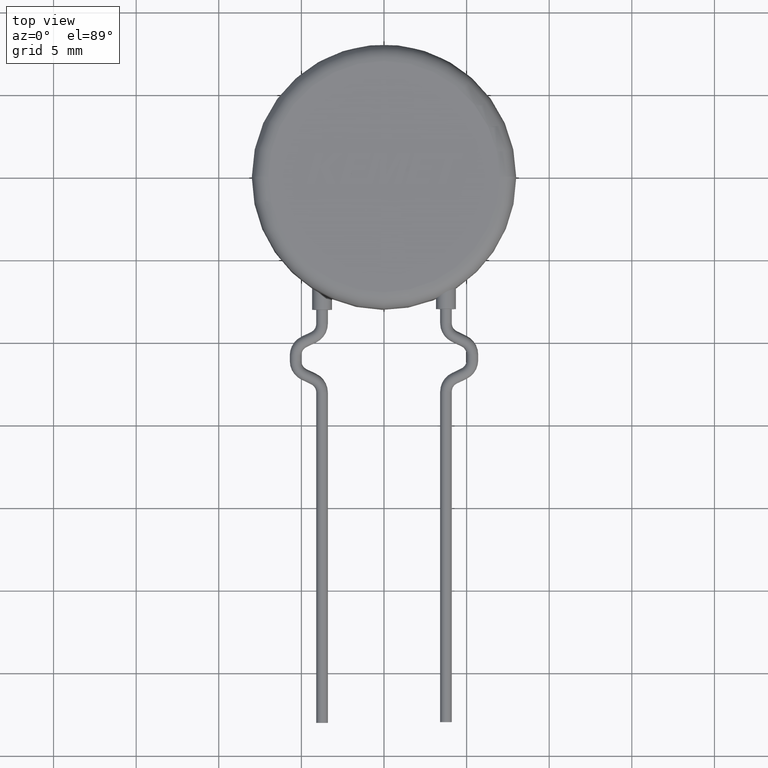
[diagram: clean part render]
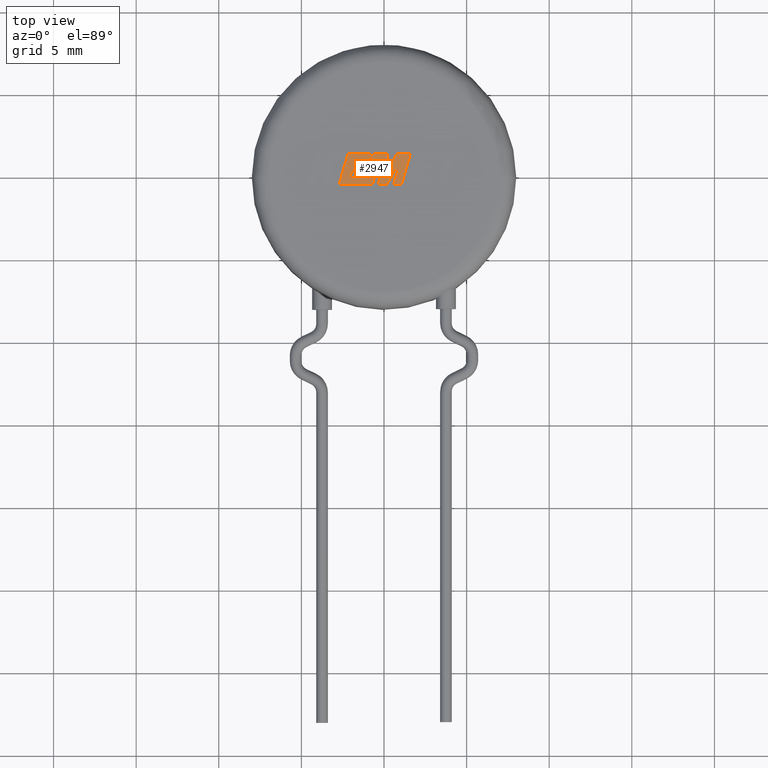
[diagram: same view with one face highlighted and labeled with its STEP entity id]
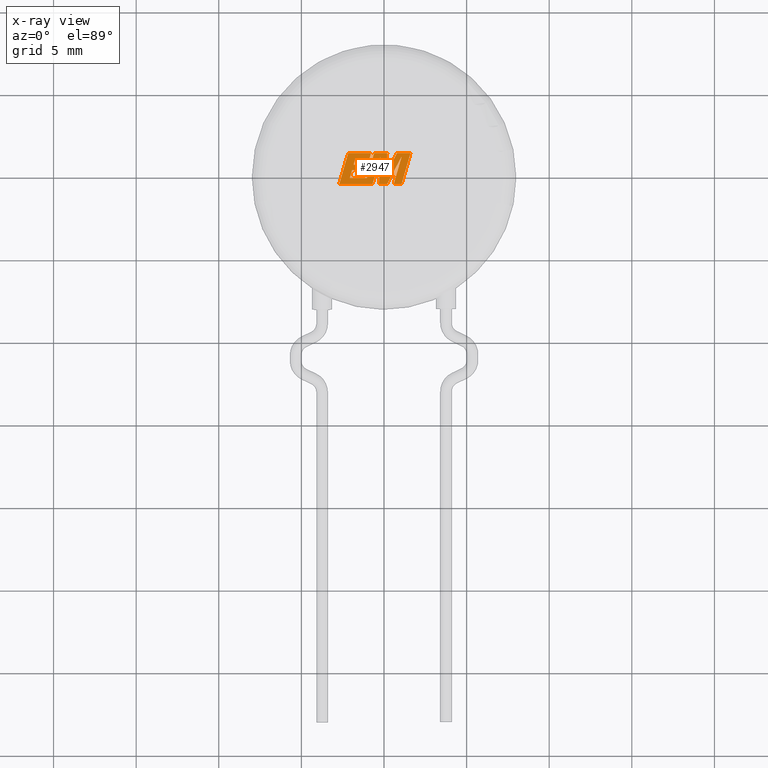
[diagram: x-ray of the same camera — body ghosted, the highlighted face saturated]
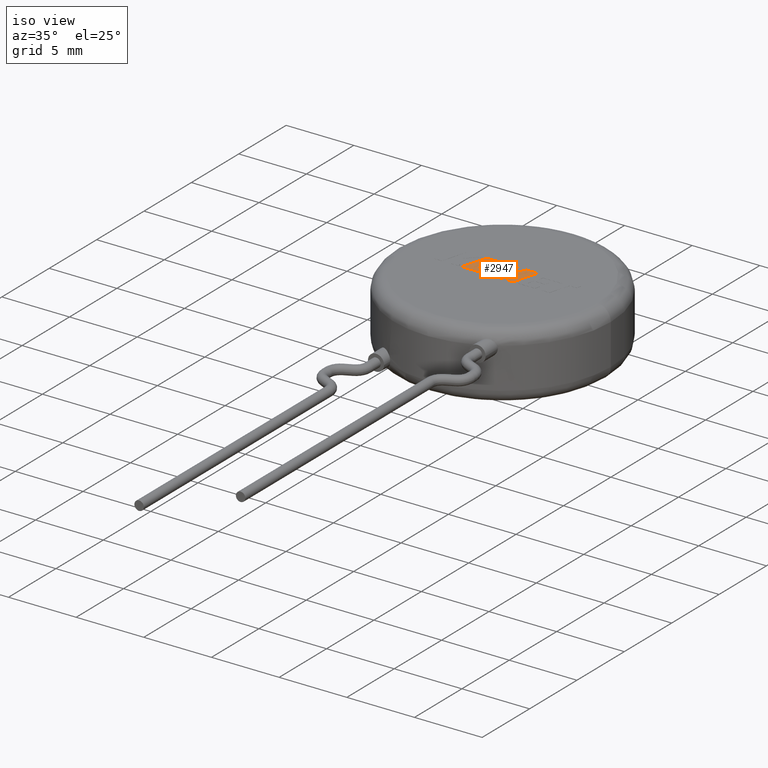
[diagram: same view with one face highlighted and labeled with its STEP entity id]
A machine part, top view. The second image highlights one B-rep face of the part: STEP entity #2947.
The next image is the same camera in x-ray: the body ghosted, the highlighted face saturated — about 0% of this face is hidden behind the body in this view.
A second angle (iso view) of the same face is appended — the face is thin or edge-on in the first view.
In plain terms, the highlighted planar face has unit normal (0, 0, -1).
Its self-contained STEP definition (entity closure, byte-faithful):
#5 = DIRECTION ( 'NONE',  ( -1.000000000000000000, 0.000000000000000000, 0.000000000000000000 ) ) ;
#26 = LINE ( 'NONE', #2363, #4378 ) ;
#69 = CARTESIAN_POINT ( 'NONE',  ( -1.037326975298746179, 0.7173078363260645407, 5.004999999999999893 ) ) ;
#92 = LINE ( 'NONE', #1436, #3196 ) ;
#121 = VECTOR ( 'NONE', #3236, 1000.000000000000227 ) ;
#146 = VERTEX_POINT ( 'NONE', #4044 ) ;
#165 = CARTESIAN_POINT ( 'NONE',  ( 1.067913865636589410, -0.4463250368678163826, 5.004999999999999893 ) ) ;
#168 = VECTOR ( 'NONE', #2300, 1000.000000000000000 ) ;
#177 = VERTEX_POINT ( 'NONE', #3597 ) ;
#199 = CARTESIAN_POINT ( 'NONE',  ( 1.604909352789751331, 1.419501945864818593, 5.004999999999999893 ) ) ;
#211 = LINE ( 'NONE', #4101, #4227 ) ;
#236 = VERTEX_POINT ( 'NONE', #3556 ) ;
#300 = CARTESIAN_POINT ( 'NONE',  ( -2.165797810300094106, 1.419501945864817705, 5.004999999999999893 ) ) ;
#367 = CARTESIAN_POINT ( 'NONE',  ( -1.737904022710164309, 1.064351360104700772, 5.004999999999999893 ) ) ;
#369 = VERTEX_POINT ( 'NONE', #2069 ) ;
#414 = PLANE ( 'NONE',  #1476 ) ;
#439 = DIRECTION ( 'NONE',  ( 1.000000000000000000, 0.000000000000000000, 0.000000000000000000 ) ) ;
#440 = VECTOR ( 'NONE', #896, 1000.000000000000114 ) ;
#467 = VECTOR ( 'NONE', #3476, 1000.000000000000114 ) ;
#488 = CARTESIAN_POINT ( 'NONE',  ( -1.838992474754948647, 0.7173078363260645407, 5.004999999999999893 ) ) ;
#508 = CARTESIAN_POINT ( 'NONE',  ( -0.2136662203277694405, 1.214771682959007393, 5.004999999999999893 ) ) ;
#509 = VECTOR ( 'NONE', #1508, 1000.000000000000114 ) ;
#510 = CARTESIAN_POINT ( 'NONE',  ( -0.3068720447621398617, -0.4463250368678168267, 5.004999999999999893 ) ) ;
#543 = VECTOR ( 'NONE', #1069, 999.9999999999998863 ) ;
#555 = CARTESIAN_POINT ( 'NONE',  ( -1.937502603360100384, 0.3723804315944925780, 5.004999999999999893 ) ) ;
#557 = ORIENTED_EDGE ( 'NONE', *, *, #2718, .T. ) ;
#564 = LINE ( 'NONE', #1539, #828 ) ;
#582 = ORIENTED_EDGE ( 'NONE', *, *, #1840, .T. ) ;
#628 = LINE ( 'NONE', #1368, #2096 ) ;
#636 = LINE ( 'NONE', #4312, #2613 ) ;
#655 = CARTESIAN_POINT ( 'NONE',  ( 0.1910567310655477136, -0.4463250368678166047, 5.004999999999999893 ) ) ;
#684 = DIRECTION ( 'NONE',  ( 0.2762426851186988719, 0.9610879142505182049, 0.000000000000000000 ) ) ;
#708 = CARTESIAN_POINT ( 'NONE',  ( -0.7859574772992985459, 1.419501945864818149, 5.004999999999999893 ) ) ;
#713 = ORIENTED_EDGE ( 'NONE', *, *, #1155, .T. ) ;
#784 = DIRECTION ( 'NONE',  ( 0.000000000000000000, 0.000000000000000000, -1.000000000000000000 ) ) ;
#808 = CARTESIAN_POINT ( 'NONE',  ( -1.037326975298746179, 0.7173078363260645407, 5.004999999999999893 ) ) ;
#828 = VECTOR ( 'NONE', #3270, 1000.000000000000000 ) ;
#830 = ORIENTED_EDGE ( 'NONE', *, *, #3845, .T. ) ;
#896 = DIRECTION ( 'NONE',  ( -0.05602289266521665034, -0.9984294844892259713, 0.000000000000000000 ) ) ;
#916 = ORIENTED_EDGE ( 'NONE', *, *, #1343, .T. ) ;
#917 = ORIENTED_EDGE ( 'NONE', *, *, #3175, .T. ) ;
#924 = DIRECTION ( 'NONE',  ( 0.2796619658066604730, 0.9600985287360637166, 0.000000000000000000 ) ) ;
#973 = CARTESIAN_POINT ( 'NONE',  ( 0.1239257491546233159, 0.08653117646504851490, 5.004999999999999893 ) ) ;
#979 = LINE ( 'NONE', #3011, #1696 ) ;
#1062 = CARTESIAN_POINT ( 'NONE',  ( 1.067913865636589410, -0.4463250368678163826, 5.004999999999999893 ) ) ;
#1069 = DIRECTION ( 'NONE',  ( 0.2742846567084410436, 0.9616485465565539625, 0.000000000000000000 ) ) ;
#1088 = LINE ( 'NONE', #4389, #2047 ) ;
#1151 = CARTESIAN_POINT ( 'NONE',  ( -1.838992474754948647, 0.7173078363260645407, 5.004999999999999893 ) ) ;
#1154 = LINE ( 'NONE', #2757, #467 ) ;
#1155 = EDGE_CURVE ( 'NONE', #236, #1275, #92, .T. ) ;
#1223 = ORIENTED_EDGE ( 'NONE', *, *, #3760, .T. ) ;
#1232 = CARTESIAN_POINT ( 'NONE',  ( -0.5996594109620584367, 1.419501945864818149, 5.004999999999999893 ) ) ;
#1246 = EDGE_CURVE ( 'NONE', #4225, #4373, #2188, .T. ) ;
#1259 = LINE ( 'NONE', #488, #3247 ) ;
#1275 = VERTEX_POINT ( 'NONE', #808 ) ;
#1282 = EDGE_CURVE ( 'NONE', #369, #2210, #3177, .T. ) ;
#1288 = CARTESIAN_POINT ( 'NONE',  ( 1.073093229021950590, 1.222770953348802037, 5.004999999999999893 ) ) ;
#1343 = EDGE_CURVE ( 'NONE', #1982, #2519, #3705, .T. ) ;
#1349 = LINE ( 'NONE', #3747, #2112 ) ;
#1368 = CARTESIAN_POINT ( 'NONE',  ( 1.073093229021950590, 1.222770953348802037, 5.004999999999999893 ) ) ;
#1374 = CARTESIAN_POINT ( 'NONE',  ( 1.604909352789751331, 1.419501945864818593, 5.004999999999999893 ) ) ;
#1391 = EDGE_CURVE ( 'NONE', #2519, #2271, #628, .T. ) ;
#1420 = VECTOR ( 'NONE', #2500, 1000.000000000000000 ) ;
#1432 = CARTESIAN_POINT ( 'NONE',  ( 0.1970842044045550689, 0.4141896342133338238, 5.004999999999998117 ) ) ;
#1436 = CARTESIAN_POINT ( 'NONE',  ( -1.135950686434203050, 0.3723804315944925780, 5.004999999999999893 ) ) ;
#1448 = CARTESIAN_POINT ( 'NONE',  ( -2.703264666454254339, -0.4463250368678172708, 5.004999999999999893 ) ) ;
#1476 = AXIS2_PLACEMENT_3D ( 'NONE', #1432, #784, #1741 ) ;
#1486 = FACE_OUTER_BOUND ( 'NONE', #3994, .T. ) ;
#1508 = DIRECTION ( 'NONE',  ( 0.2734771135135810605, 0.9618785101998483800, 0.000000000000000000 ) ) ;
#1514 = EDGE_CURVE ( 'NONE', #4373, #1982, #2938, .T. ) ;
#1528 = VERTEX_POINT ( 'NONE', #1448 ) ;
#1538 = VECTOR ( 'NONE', #3630, 1000.000000000000227 ) ;
#1539 = CARTESIAN_POINT ( 'NONE',  ( -0.7859574772992985459, 1.419501945864818149, 5.004999999999999893 ) ) ;
#1590 = VERTEX_POINT ( 'NONE', #199 ) ;
#1696 = VECTOR ( 'NONE', #3678, 1000.000000000000114 ) ;
#1735 = ORIENTED_EDGE ( 'NONE', *, *, #1246, .T. ) ;
#1741 = DIRECTION ( 'NONE',  ( -1.000000000000000000, 0.000000000000000000, 0.000000000000000000 ) ) ;
#1840 = EDGE_CURVE ( 'NONE', #2210, #2828, #564, .T. ) ;
#1860 = ORIENTED_EDGE ( 'NONE', *, *, #1282, .T. ) ;
#1893 = VERTEX_POINT ( 'NONE', #1930 ) ;
#1916 = ORIENTED_EDGE ( 'NONE', *, *, #4372, .T. ) ;
#1918 = CARTESIAN_POINT ( 'NONE',  ( -0.3068720447621398617, -0.4463250368678168267, 5.004999999999999893 ) ) ;
#1923 = EDGE_CURVE ( 'NONE', #3849, #369, #636, .T. ) ;
#1930 = CARTESIAN_POINT ( 'NONE',  ( -1.034385187767230763, -0.09135032158837645688, 5.004999999999999893 ) ) ;
#1982 = VERTEX_POINT ( 'NONE', #3015 ) ;
#1999 = CARTESIAN_POINT ( 'NONE',  ( -0.2136662203277694405, 1.214771682959007393, 5.004999999999999893 ) ) ;
#2007 = DIRECTION ( 'NONE',  ( 1.000000000000000000, 0.000000000000000000, 0.000000000000000000 ) ) ;
#2028 = DIRECTION ( 'NONE',  ( 1.000000000000000000, 0.000000000000000000, 0.000000000000000000 ) ) ;
#2044 = LINE ( 'NONE', #3095, #3796 ) ;
#2047 = VECTOR ( 'NONE', #3087, 1000.000000000000114 ) ;
#2060 = EDGE_CURVE ( 'NONE', #1275, #2842, #3827, .T. ) ;
#2067 = DIRECTION ( 'NONE',  ( -0.4446908369572518116, -0.8956841293258795966, 0.000000000000000000 ) ) ;
#2069 = CARTESIAN_POINT ( 'NONE',  ( -0.8869323468139057587, 1.064351360104700772, 5.004999999999999893 ) ) ;
#2096 = VECTOR ( 'NONE', #4048, 1000.000000000000227 ) ;
#2112 = VECTOR ( 'NONE', #2028, 1000.000000000000000 ) ;
#2152 = ORIENTED_EDGE ( 'NONE', *, *, #2308, .T. ) ;
#2188 = LINE ( 'NONE', #508, #440 ) ;
#2210 = VERTEX_POINT ( 'NONE', #708 ) ;
#2220 = ORIENTED_EDGE ( 'NONE', *, *, #2329, .T. ) ;
#2271 = VERTEX_POINT ( 'NONE', #3042 ) ;
#2290 = VERTEX_POINT ( 'NONE', #2686 ) ;
#2300 = DIRECTION ( 'NONE',  ( 1.000000000000000000, 4.198073881304329234E-16, 0.000000000000000000 ) ) ;
#2308 = EDGE_CURVE ( 'NONE', #2290, #3688, #26, .T. ) ;
#2321 = CARTESIAN_POINT ( 'NONE',  ( 0.1957545535707970741, 1.419501945864818149, 5.004999999999999893 ) ) ;
#2329 = EDGE_CURVE ( 'NONE', #1528, #146, #3428, .T. ) ;
#2348 = ORIENTED_EDGE ( 'NONE', *, *, #2060, .T. ) ;
#2356 = VECTOR ( 'NONE', #2479, 1000.000000000000000 ) ;
#2363 = CARTESIAN_POINT ( 'NONE',  ( 0.7857214287655426288, 1.419501945864818593, 5.004999999999999893 ) ) ;
#2368 = EDGE_CURVE ( 'NONE', #2905, #236, #1349, .T. ) ;
#2378 = VERTEX_POINT ( 'NONE', #1062 ) ;
#2392 = EDGE_CURVE ( 'NONE', #146, #4225, #2044, .T. ) ;
#2433 = ORIENTED_EDGE ( 'NONE', *, *, #3980, .T. ) ;
#2454 = LINE ( 'NONE', #3730, #543 ) ;
#2479 = DIRECTION ( 'NONE',  ( -1.000000000000000000, 2.627992318163165297E-16, 0.000000000000000000 ) ) ;
#2500 = DIRECTION ( 'NONE',  ( -1.000000000000000000, 0.000000000000000000, 0.000000000000000000 ) ) ;
#2519 = VERTEX_POINT ( 'NONE', #1288 ) ;
#2520 = VERTEX_POINT ( 'NONE', #1232 ) ;
#2559 = EDGE_CURVE ( 'NONE', #2520, #1893, #1088, .T. ) ;
#2613 = VECTOR ( 'NONE', #2007, 1000.000000000000000 ) ;
#2686 = CARTESIAN_POINT ( 'NONE',  ( 0.7857214287655426288, 1.419501945864818593, 5.004999999999999893 ) ) ;
#2718 = EDGE_CURVE ( 'NONE', #3688, #4309, #979, .T. ) ;
#2757 = CARTESIAN_POINT ( 'NONE',  ( -2.165797810300094106, 1.419501945864817705, 5.004999999999999893 ) ) ;
#2778 = ORIENTED_EDGE ( 'NONE', *, *, #1923, .T. ) ;
#2828 = VERTEX_POINT ( 'NONE', #300 ) ;
#2838 = ORIENTED_EDGE ( 'NONE', *, *, #2368, .T. ) ;
#2839 = ORIENTED_EDGE ( 'NONE', *, *, #1514, .T. ) ;
#2842 = VERTEX_POINT ( 'NONE', #1151 ) ;
#2872 = ORIENTED_EDGE ( 'NONE', *, *, #3361, .T. ) ;
#2905 = VERTEX_POINT ( 'NONE', #555 ) ;
#2938 = LINE ( 'NONE', #1918, #168 ) ;
#2947 = ADVANCED_FACE ( 'NONE', ( #1486 ), #414, .F. ) ;
#3011 = CARTESIAN_POINT ( 'NONE',  ( 0.1239257491546233159, 0.08653117646504851490, 5.004999999999999893 ) ) ;
#3015 = CARTESIAN_POINT ( 'NONE',  ( 0.1910567310655477136, -0.4463250368678166047, 5.004999999999999893 ) ) ;
#3042 = CARTESIAN_POINT ( 'NONE',  ( 0.5932865459174190281, -0.4463250368678163826, 5.004999999999999893 ) ) ;
#3047 = VECTOR ( 'NONE', #3062, 1000.000000000000000 ) ;
#3062 = DIRECTION ( 'NONE',  ( -1.000000000000000000, 0.000000000000000000, 0.000000000000000000 ) ) ;
#3068 = ORIENTED_EDGE ( 'NONE', *, *, #2392, .T. ) ;
#3087 = DIRECTION ( 'NONE',  ( -0.2765164248279863290, -0.9610091918396767019, 0.000000000000000000 ) ) ;
#3095 = CARTESIAN_POINT ( 'NONE',  ( -0.6911103868009905726, -0.4463250368678168267, 5.004999999999999893 ) ) ;
#3117 = VECTOR ( 'NONE', #439, 1000.000000000000000 ) ;
#3152 = CARTESIAN_POINT ( 'NONE',  ( 0.1957545535707970741, 1.419501945864818149, 5.004999999999999893 ) ) ;
#3175 = EDGE_CURVE ( 'NONE', #1590, #2290, #3683, .T. ) ;
#3177 = LINE ( 'NONE', #3860, #509 ) ;
#3196 = VECTOR ( 'NONE', #3449, 1000.000000000000000 ) ;
#3236 = DIRECTION ( 'NONE',  ( 0.2765786873027072934, 0.9609912745337031437, 0.000000000000000000 ) ) ;
#3247 = VECTOR ( 'NONE', #924, 1000.000000000000114 ) ;
#3270 = DIRECTION ( 'NONE',  ( -1.000000000000000000, -1.514915703330761900E-16, 0.000000000000000000 ) ) ;
#3271 = ORIENTED_EDGE ( 'NONE', *, *, #2559, .T. ) ;
#3361 = EDGE_CURVE ( 'NONE', #1893, #177, #211, .T. ) ;
#3428 = LINE ( 'NONE', #4054, #4360 ) ;
#3449 = DIRECTION ( 'NONE',  ( 0.2749093116859782637, 0.9614701609245820402, 0.000000000000000000 ) ) ;
#3476 = DIRECTION ( 'NONE',  ( -0.2768028711044295265, -0.9609267248590521726, 0.000000000000000000 ) ) ;
#3485 = CARTESIAN_POINT ( 'NONE',  ( 0.5932865459174190281, -0.4463250368678163826, 5.004999999999999893 ) ) ;
#3513 = ORIENTED_EDGE ( 'NONE', *, *, #1391, .T. ) ;
#3556 = CARTESIAN_POINT ( 'NONE',  ( -1.135950686434203050, 0.3723804315944925780, 5.004999999999999893 ) ) ;
#3575 = LINE ( 'NONE', #3152, #2356 ) ;
#3597 = CARTESIAN_POINT ( 'NONE',  ( -2.069769459996408489, -0.09135032158837645688, 5.004999999999999893 ) ) ;
#3630 = DIRECTION ( 'NONE',  ( 0.4672245356054809950, 0.8841386957532412216, 0.000000000000000000 ) ) ;
#3653 = LINE ( 'NONE', #165, #121 ) ;
#3678 = DIRECTION ( 'NONE',  ( 0.05380819065979314947, 0.9985512899285240440, 0.000000000000000000 ) ) ;
#3683 = LINE ( 'NONE', #1374, #3047 ) ;
#3688 = VERTEX_POINT ( 'NONE', #973 ) ;
#3705 = LINE ( 'NONE', #655, #1538 ) ;
#3727 = LINE ( 'NONE', #3485, #3117 ) ;
#3730 = CARTESIAN_POINT ( 'NONE',  ( -2.069769459996408489, -0.09135032158837645688, 5.004999999999999893 ) ) ;
#3747 = CARTESIAN_POINT ( 'NONE',  ( -1.937502603360100384, 0.3723804315944925780, 5.004999999999999893 ) ) ;
#3759 = ORIENTED_EDGE ( 'NONE', *, *, #4022, .T. ) ;
#3760 = EDGE_CURVE ( 'NONE', #2828, #1528, #1154, .T. ) ;
#3796 = VECTOR ( 'NONE', #684, 1000.000000000000114 ) ;
#3827 = LINE ( 'NONE', #69, #1420 ) ;
#3845 = EDGE_CURVE ( 'NONE', #177, #2905, #2454, .T. ) ;
#3849 = VERTEX_POINT ( 'NONE', #367 ) ;
#3860 = CARTESIAN_POINT ( 'NONE',  ( -0.8869323468139057587, 1.064351360104700772, 5.004999999999999893 ) ) ;
#3902 = ORIENTED_EDGE ( 'NONE', *, *, #4108, .T. ) ;
#3980 = EDGE_CURVE ( 'NONE', #4309, #2520, #3575, .T. ) ;
#3994 = EDGE_LOOP ( 'NONE', ( #917, #2152, #557, #2433, #3271, #2872, #830, #2838, #713, #2348, #3902, #2778, #1860, #582, #1223, #2220, #3068, #1735, #2839, #916, #3513, #3759, #1916 ) ) ;
#4022 = EDGE_CURVE ( 'NONE', #2271, #2378, #3727, .T. ) ;
#4044 = CARTESIAN_POINT ( 'NONE',  ( -0.6911103868009905726, -0.4463250368678168267, 5.004999999999999893 ) ) ;
#4048 = DIRECTION ( 'NONE',  ( -0.2762763573717051946, -0.9610782352948284979, 0.000000000000000000 ) ) ;
#4054 = CARTESIAN_POINT ( 'NONE',  ( -2.703264666454254339, -0.4463250368678172708, 5.004999999999999893 ) ) ;
#4101 = CARTESIAN_POINT ( 'NONE',  ( -1.034385187767230763, -0.09135032158837645688, 5.004999999999999893 ) ) ;
#4108 = EDGE_CURVE ( 'NONE', #2842, #3849, #1259, .T. ) ;
#4110 = DIRECTION ( 'NONE',  ( 1.000000000000000000, 1.866711923699240266E-16, 0.000000000000000000 ) ) ;
#4225 = VERTEX_POINT ( 'NONE', #1999 ) ;
#4227 = VECTOR ( 'NONE', #5, 1000.000000000000000 ) ;
#4309 = VERTEX_POINT ( 'NONE', #2321 ) ;
#4312 = CARTESIAN_POINT ( 'NONE',  ( -1.737904022710164309, 1.064351360104700772, 5.004999999999999893 ) ) ;
#4360 = VECTOR ( 'NONE', #4110, 1000.000000000000000 ) ;
#4372 = EDGE_CURVE ( 'NONE', #2378, #1590, #3653, .T. ) ;
#4373 = VERTEX_POINT ( 'NONE', #510 ) ;
#4378 = VECTOR ( 'NONE', #2067, 1000.000000000000000 ) ;
#4389 = CARTESIAN_POINT ( 'NONE',  ( -0.5996594109620584367, 1.419501945864818149, 5.004999999999999893 ) ) ;